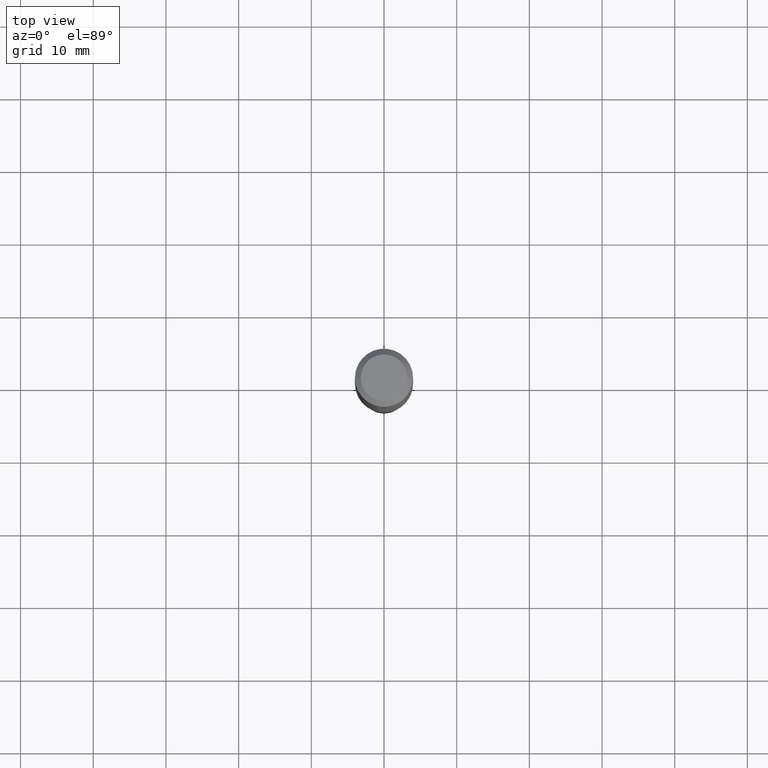
[diagram: clean part render]
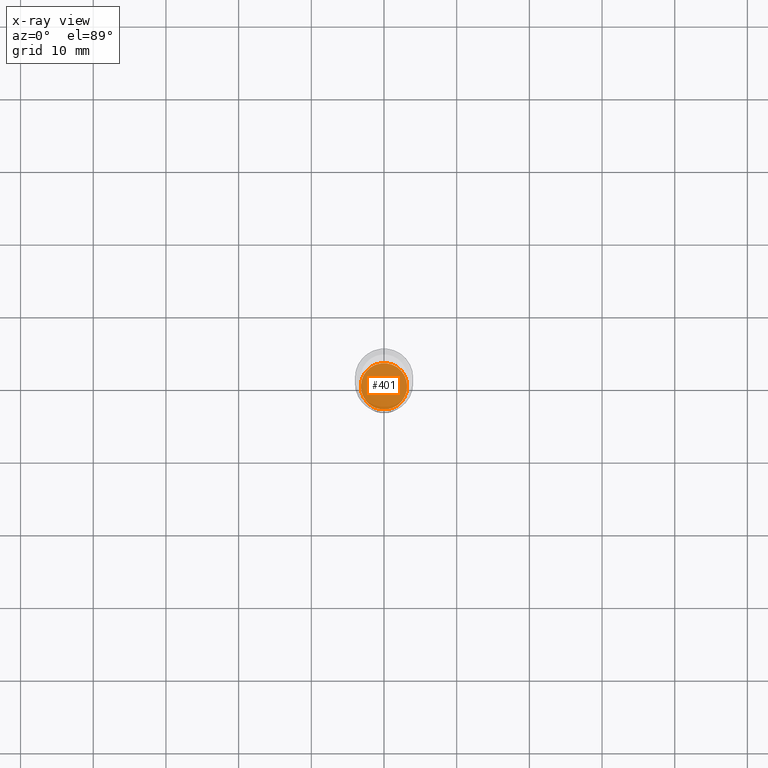
[diagram: x-ray — body ghosted, one internal face saturated and labeled with its STEP entity id]
A machine part, top view, then the same camera in x-ray: the body is ghosted and one INTERNAL B-rep face — a face not visible from any outside direction — is saturated and labeled: STEP entity #401.
In plain terms, the highlighted planar face has unit normal (-0, 0, 1).
Its self-contained STEP definition (entity closure, byte-faithful):
#28 = FACE_OUTER_BOUND ( 'NONE', #380, .T. ) ;
#32 = CARTESIAN_POINT ( 'NONE',  ( 6.644338746405015317E-29, -9.486354797636825890E-15, -2.717000000000000082 ) ) ;
#70 = VERTEX_POINT ( 'NONE', #79 ) ;
#75 = DIRECTION ( 'NONE',  ( 1.000000000000000000, -6.982962677686259611E-15, 0.000000000000000000 ) ) ;
#77 = DIRECTION ( 'NONE',  ( -2.438088387897960049E-29, 3.491481338843145188E-15, 1.000000000000000000 ) ) ;
#79 = CARTESIAN_POINT ( 'NONE',  ( -0.1255000000000000004, -8.591974437083788559E-15, -2.717000000000000082 ) ) ;
#86 = ORIENTED_EDGE ( 'NONE', *, *, #306, .F. ) ;
#106 = ORIENTED_EDGE ( 'NONE', *, *, #443, .F. ) ;
#116 = CARTESIAN_POINT ( 'NONE',  ( 0.1255000000000000004, -1.036271661368645224E-14, -2.717000000000000082 ) ) ;
#125 = AXIS2_PLACEMENT_3D ( 'NONE', #394, #77, #518 ) ;
#205 = CIRCLE ( 'NONE', #322, 0.1255000000000000004 ) ;
#220 = DIRECTION ( 'NONE',  ( -2.445468806185136597E-29, 3.491481338843145583E-15, 1.000000000000000000 ) ) ;
#269 = CARTESIAN_POINT ( 'NONE',  ( 6.644338746405015317E-29, -9.486354797636825890E-15, -2.717000000000000082 ) ) ;
#306 = EDGE_CURVE ( 'NONE', #503, #70, #205, .T. ) ;
#322 = AXIS2_PLACEMENT_3D ( 'NONE', #32, #470, #75 ) ;
#380 = EDGE_LOOP ( 'NONE', ( #86, #106 ) ) ;
#394 = CARTESIAN_POINT ( 'NONE',  ( 6.644338746405015317E-29, -9.486354797636825890E-15, -2.717000000000000082 ) ) ;
#400 = CIRCLE ( 'NONE', #502, 0.1255000000000000004 ) ;
#401 = ADVANCED_FACE ( 'NONE', ( #28 ), #512, .F. ) ;
#422 = DIRECTION ( 'NONE',  ( 1.000000000000000000, -6.982962677686259611E-15, 0.000000000000000000 ) ) ;
#443 = EDGE_CURVE ( 'NONE', #70, #503, #400, .T. ) ;
#470 = DIRECTION ( 'NONE',  ( -2.445468806185136597E-29, 3.491481338843145583E-15, 1.000000000000000000 ) ) ;
#502 = AXIS2_PLACEMENT_3D ( 'NONE', #269, #220, #422 ) ;
#503 = VERTEX_POINT ( 'NONE', #116 ) ;
#512 = PLANE ( 'NONE',  #125 ) ;
#518 = DIRECTION ( 'NONE',  ( 1.000000000000000000, -6.982962677686265922E-15, 4.876176775795935793E-29 ) ) ;